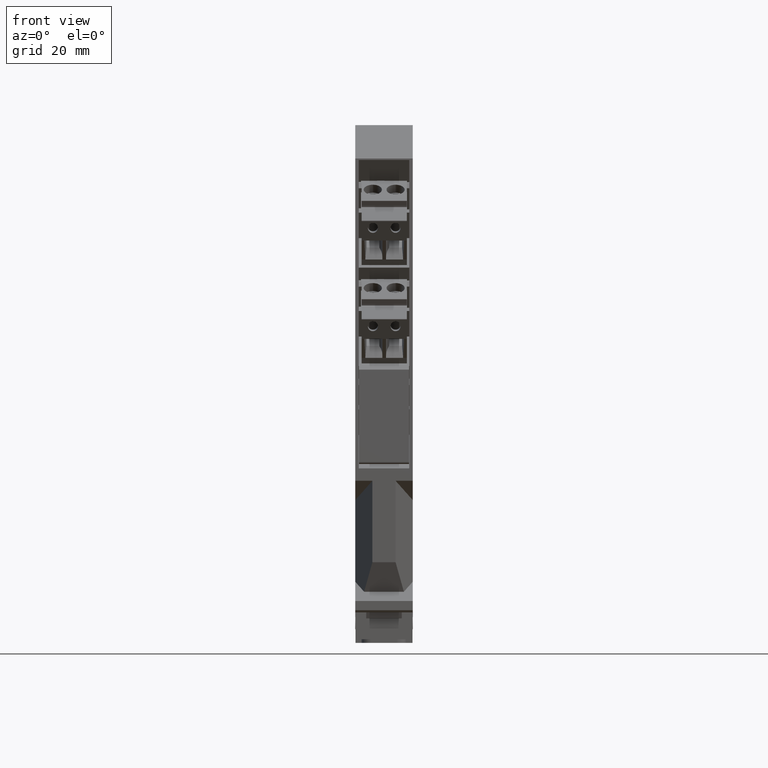
[diagram: clean part render]
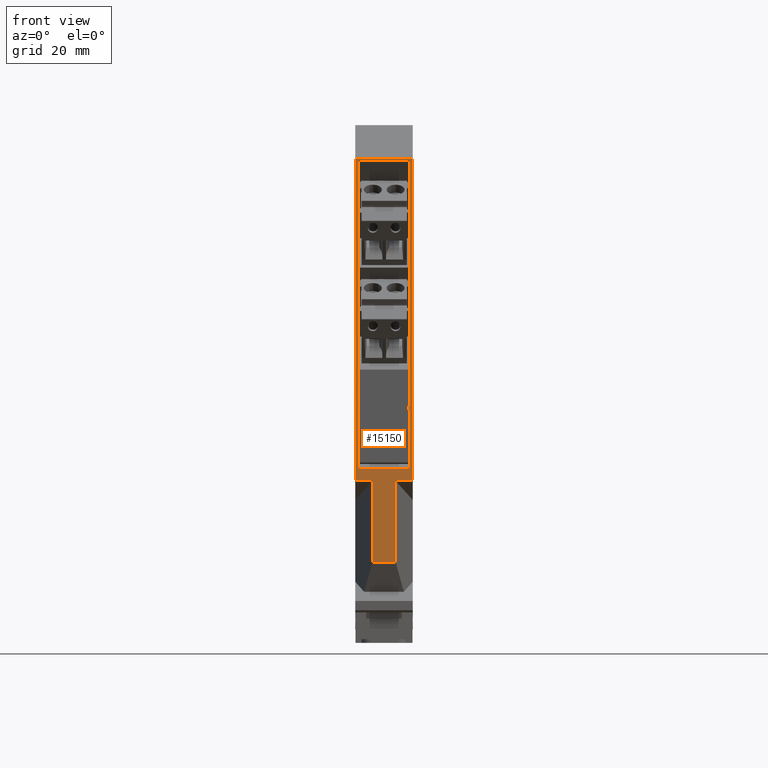
[diagram: same view with one face highlighted and labeled with its STEP entity id]
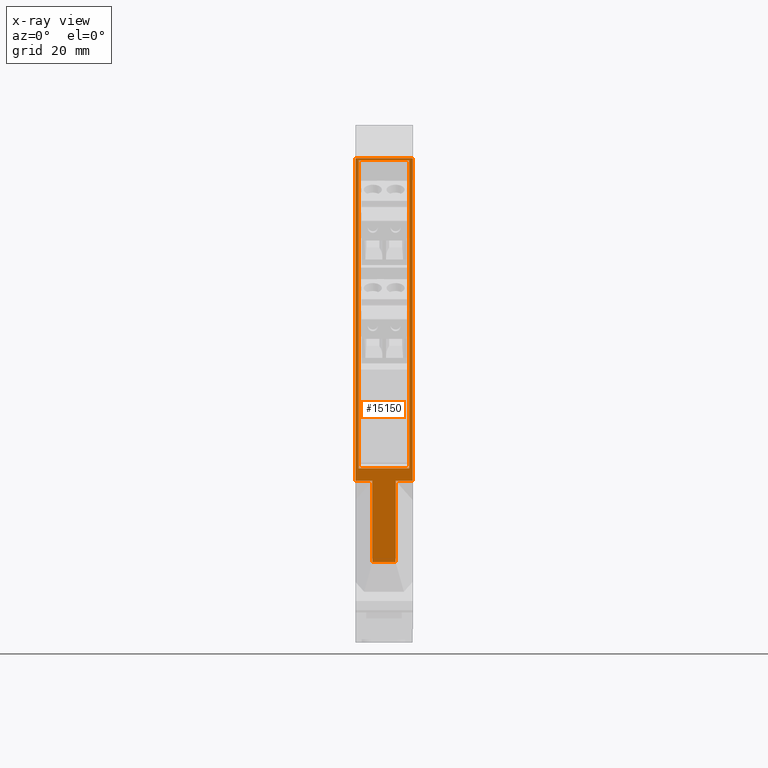
[diagram: x-ray of the same camera — body ghosted, the highlighted face saturated]
A machine part, front view. The second image highlights one B-rep face of the part: STEP entity #15150.
The next image is the same camera in x-ray: the body ghosted, the highlighted face saturated — about 0% of this face is hidden behind the body in this view.
In plain terms, the highlighted planar face has unit normal (-0, 1, -0).
Its self-contained STEP definition (entity closure, byte-faithful):
#2630=CARTESIAN_POINT('',(12.5999992226559,-1.36637368086667E-11,
35.6000000000229));
#2640=VERTEX_POINT('',#2630);
#2670=CARTESIAN_POINT('',(12.5999992226559,-1.66863856065902E-10,
-45.6999999999939));
#2680=DIRECTION('',(2.28384227811265E-18,1.88483935512212E-12,1.));
#2690=VECTOR('',#2680,1.);
#2700=LINE('',#2670,#2690);
#2710=CARTESIAN_POINT('',(12.5999992226559,1.1974776725765E-10,
106.361694196724));
#2720=VERTEX_POINT('',#2710);
#2730=EDGE_CURVE('',#2640,#2720,#2700,.T.);
#11410=CARTESIAN_POINT('',(2.94058111194317E-11,1.1974776725765E-10,
106.361694196724));
#11420=VERTEX_POINT('',#11410);
#11450=CARTESIAN_POINT('',(2.94058111194317E-11,-1.66863856065902E-10,
-45.6999999999939));
#11460=DIRECTION('',(1.82764232603561E-24,-1.88483935512212E-12,-1.));
#11470=VECTOR('',#11460,1.);
#11480=LINE('',#11450,#11470);
#11490=CARTESIAN_POINT('',(2.94058111194317E-11,-1.36282096718787E-11,
35.6000000000131));
#11500=VERTEX_POINT('',#11490);
#11510=EDGE_CURVE('',#11420,#11500,#11480,.T.);
#14280=CARTESIAN_POINT('',(12.5999992226559,-1.75859327100625E-11,
33.5000000000418));
#14290=DIRECTION('',(-4.30467059067645E-30,1.,-1.88483935512212E-12));
#14300=DIRECTION('',(-2.28384227807285E-18,-1.88483935512212E-12,-1.));
#14310=AXIS2_PLACEMENT_3D('',#14280,#14290,#14300);
#14320=PLANE('',#14310);
#14330=ORIENTED_EDGE('',*,*,#2730,.T.);
#14340=CARTESIAN_POINT('',(8.79999999946697,-1.36282096718787E-11,
35.6000000000228));
#14350=DIRECTION('',(-1.,5.21570800288403E-36,2.28384227807285E-18));
#14360=VECTOR('',#14350,1.);
#14370=LINE('',#14340,#14360);
#14380=CARTESIAN_POINT('',(8.84722247237329,-1.36282096718787E-11,
35.6000000000228));
#14390=VERTEX_POINT('',#14380);
#14400=EDGE_CURVE('',#2640,#14390,#14370,.T.);
#14410=ORIENTED_EDGE('',*,*,#14400,.F.);
#14420=CARTESIAN_POINT('',(8.84722247237096,-1.66863856065902E-10,
-45.6999999999939));
#14430=DIRECTION('',(-2.87185266256058E-14,-1.88483935512212E-12,-1.));
#14440=VECTOR('',#14430,1.);
#14450=LINE('',#14420,#14440);
#14460=CARTESIAN_POINT('',(8.84722247237278,-4.73647787657683E-11,
17.7000000006574));
#14470=VERTEX_POINT('',#14460);
#14480=EDGE_CURVE('',#14390,#14470,#14450,.T.);
#14490=ORIENTED_EDGE('',*,*,#14480,.F.);
#14500=CARTESIAN_POINT('',(8.79999999946697,-4.73647787657683E-11,
17.7000000006574));
#14510=DIRECTION('',(-1.,8.59764683078851E-28,4.58429904915327E-16));
#14520=VECTOR('',#14510,1.);
#14530=LINE('',#14500,#14520);
#14540=CARTESIAN_POINT('',(3.75277674922265,-4.73647787657683E-11,
17.7000000006574));
#14550=VERTEX_POINT('',#14540);
#14560=EDGE_CURVE('',#14470,#14550,#14530,.T.);
#14570=ORIENTED_EDGE('',*,*,#14560,.F.);
#14580=CARTESIAN_POINT('',(3.75277674929164,-1.66863856065902E-10,
-45.6999999999939));
#14590=DIRECTION('',(-1.08820890664562E-12,1.88483935512212E-12,1.));
#14600=VECTOR('',#14590,1.);
#14610=LINE('',#14580,#14600);
#14620=CARTESIAN_POINT('',(3.75277674920317,-1.36282096718787E-11,
35.6000000000155));
#14630=VERTEX_POINT('',#14620);
#14640=EDGE_CURVE('',#14550,#14630,#14610,.T.);
#14650=ORIENTED_EDGE('',*,*,#14640,.F.);
#14660=CARTESIAN_POINT('',(8.79999999946697,-1.36282096718787E-11,
35.6000000000187));
#14670=DIRECTION('',(-1.,-1.18691427910026E-24,-6.29709387785081E-13));
#14680=VECTOR('',#14670,1.);
#14690=LINE('',#14660,#14680);
#14700=EDGE_CURVE('',#14630,#11500,#14690,.T.);
#14710=ORIENTED_EDGE('',*,*,#14700,.F.);
#14720=ORIENTED_EDGE('',*,*,#11510,.T.);
#14730=CARTESIAN_POINT('',(8.79999999946697,1.1974776725765E-10,
106.361694196724));
#14740=DIRECTION('',(1.,-5.21570800288403E-36,-2.28384227807285E-18));
#14750=VECTOR('',#14740,1.);
#14760=LINE('',#14730,#14750);
#14770=EDGE_CURVE('',#11420,#2720,#14760,.T.);
#14780=ORIENTED_EDGE('',*,*,#14770,.F.);
#14790=EDGE_LOOP('',(#14780,#14720,#14710,#14650,#14570,#14490,#14410,
#14330));
#14800=FACE_OUTER_BOUND('',#14790,.T.);
#14810=CARTESIAN_POINT('',(8.79999999946697,-8.4838802649756E-12,
38.3317897316368));
#14820=DIRECTION('',(1.,-1.18628919282724E-24,-6.29396449567343E-13));
#14830=VECTOR('',#14820,1.);
#14840=LINE('',#14810,#14830);
#14850=CARTESIAN_POINT('',(0.750000777703139,-8.4838802649756E-12,
38.3317897316419));
#14860=VERTEX_POINT('',#14850);
#14870=CARTESIAN_POINT('',(11.8500007773735,-8.476774837618E-12,
38.3317897316349));
#14880=VERTEX_POINT('',#14870);
#14890=EDGE_CURVE('',#14860,#14880,#14840,.T.);
#14900=ORIENTED_EDGE('',*,*,#14890,.F.);
#14910=CARTESIAN_POINT('',(11.8500007773735,-1.66863856065902E-10,
-45.6999999999939));
#14920=DIRECTION('',(2.28383942500453E-18,-1.88483935512212E-12,-1.));
#14930=VECTOR('',#14920,1.);
#14940=LINE('',#14910,#14930);
#14950=CARTESIAN_POINT('',(11.8500007763175,1.19122489650181E-10,
106.031423187891));
#14960=VERTEX_POINT('',#14950);
#14970=EDGE_CURVE('',#14960,#14880,#14940,.T.);
#14980=ORIENTED_EDGE('',*,*,#14970,.T.);
#14990=CARTESIAN_POINT('',(8.79999999946697,1.19122489650181E-10,
106.031423187896));
#15000=DIRECTION('',(1.,-2.79935218800037E-24,-1.48520054236592E-12));
#15010=VECTOR('',#15000,1.);
#15020=LINE('',#14990,#15010);
#15030=CARTESIAN_POINT('',(0.750000776647143,1.19122489650181E-10,
106.031423187908));
#15040=VERTEX_POINT('',#15030);
#15050=EDGE_CURVE('',#15040,#14960,#15020,.T.);
#15060=ORIENTED_EDGE('',*,*,#15050,.T.);
#15070=CARTESIAN_POINT('',(0.750000777703141,-1.66863856065902E-10,
-45.6999999999939));
#15080=DIRECTION('',(-2.28384316549265E-18,1.88483935512212E-12,1.));
#15090=VECTOR('',#15080,1.);
#15100=LINE('',#15070,#15090);
#15110=EDGE_CURVE('',#14860,#15040,#15100,.T.);
#15120=ORIENTED_EDGE('',*,*,#15110,.T.);
#15130=EDGE_LOOP('',(#15120,#15060,#14980,#14900));
#15140=FACE_BOUND('',#15130,.T.);
#15150=ADVANCED_FACE('',(#14800,#15140),#14320,.F.);